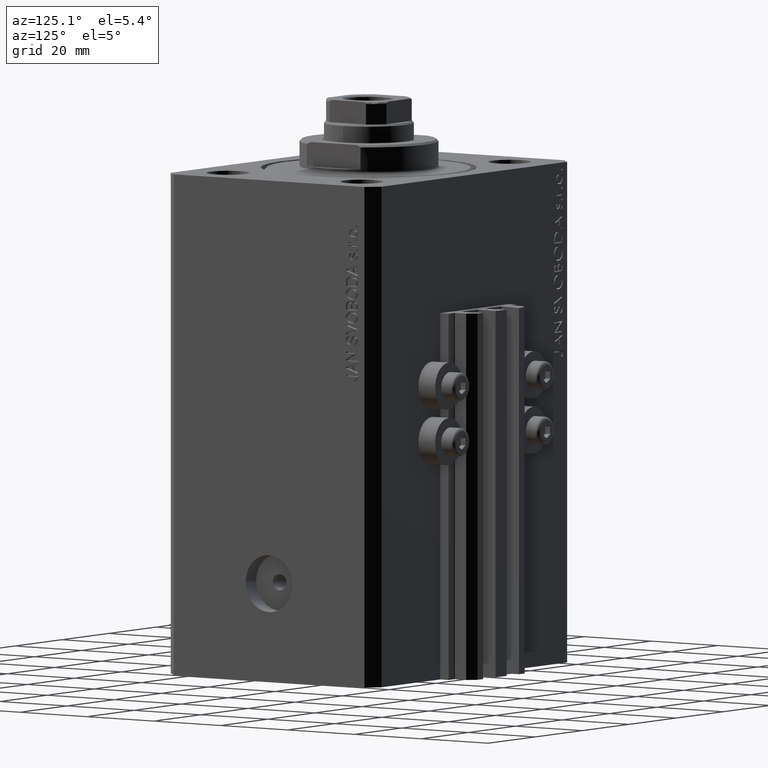
[diagram: clean part render]
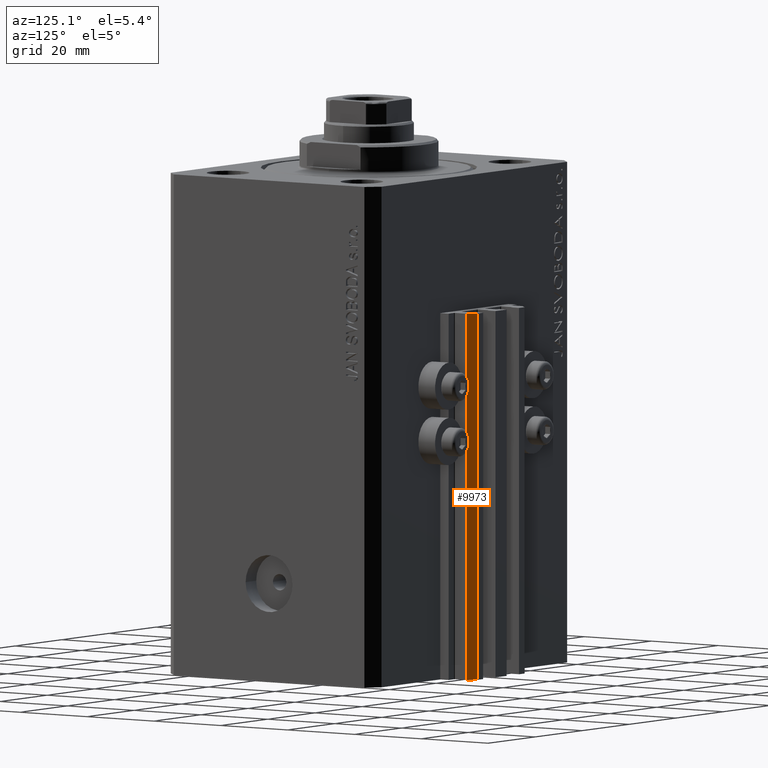
[diagram: same view with one face highlighted and labeled with its STEP entity id]
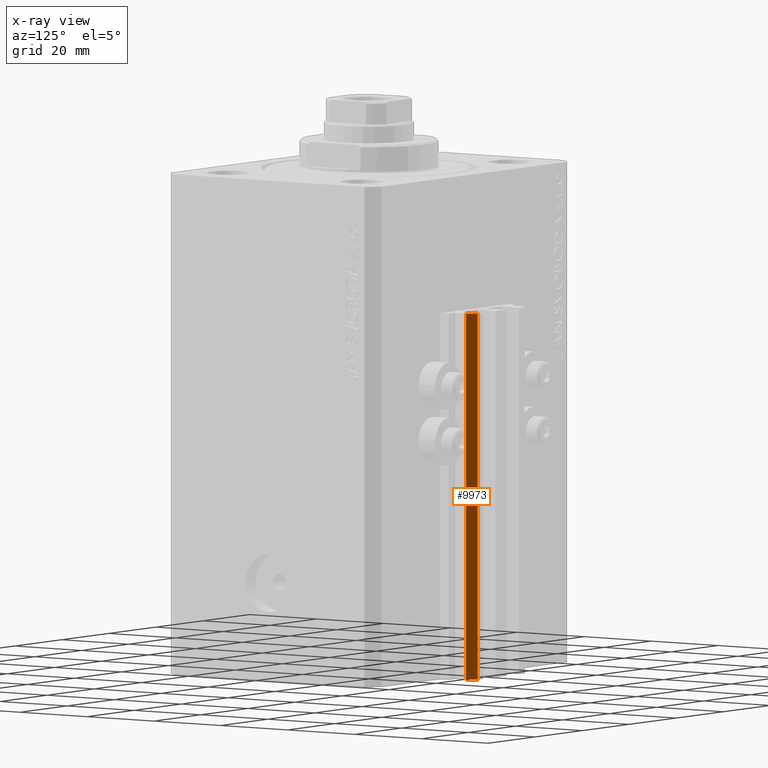
[diagram: x-ray of the same camera — body ghosted, the highlighted face saturated]
A machine part, auxiliary view. The second image highlights one B-rep face of the part: STEP entity #9973.
The next image is the same camera in x-ray: the body ghosted, the highlighted face saturated — about 0% of this face is hidden behind the body in this view.
In plain terms, the highlighted planar face has unit normal (0.7071, 0.7071, 0).
Its self-contained STEP definition (entity closure, byte-faithful):
#211 = EDGE_CURVE ( 'NONE', #39183, #26933, #20860, .T. ) ;
#1888 = FACE_OUTER_BOUND ( 'NONE', #15409, .T. ) ;
#3472 = CARTESIAN_POINT ( 'NONE',  ( 9.999999999999998224, 39.50000000000002132, -123.0000000000000000 ) ) ;
#3578 = CARTESIAN_POINT ( 'NONE',  ( 12.00000000000000000, 37.50000000000002132, -33.00000000000000000 ) ) ;
#3721 = EDGE_CURVE ( 'NONE', #16365, #39183, #27885, .T. ) ;
#6134 = DIRECTION ( 'NONE',  ( 0.000000000000000000, 0.000000000000000000, 1.000000000000000000 ) ) ;
#9560 = VERTEX_POINT ( 'NONE', #44805 ) ;
#9973 = ADVANCED_FACE ( 'NONE', ( #1888 ), #16465, .T. ) ;
#10476 = DIRECTION ( 'NONE',  ( -0.7071067811865474617, 0.7071067811865474617, 0.000000000000000000 ) ) ;
#11031 = LINE ( 'NONE', #18207, #21628 ) ;
#12880 = DIRECTION ( 'NONE',  ( 0.7071067811865475727, 0.7071067811865475727, -0.000000000000000000 ) ) ;
#12947 = ORIENTED_EDGE ( 'NONE', *, *, #16664, .T. ) ;
#15409 = EDGE_LOOP ( 'NONE', ( #31274, #42869, #12947, #34516 ) ) ;
#16365 = VERTEX_POINT ( 'NONE', #23789 ) ;
#16465 = PLANE ( 'NONE',  #34180 ) ;
#16664 = EDGE_CURVE ( 'NONE', #16365, #9560, #11031, .T. ) ;
#17575 = DIRECTION ( 'NONE',  ( 0.000000000000000000, 0.000000000000000000, 1.000000000000000000 ) ) ;
#18207 = CARTESIAN_POINT ( 'NONE',  ( 12.00000000000000000, 37.50000000000002132, -123.0000000000000000 ) ) ;
#20860 = LINE ( 'NONE', #31645, #42220 ) ;
#20927 = LINE ( 'NONE', #3472, #39470 ) ;
#21628 = VECTOR ( 'NONE', #32103, 1000.000000000000114 ) ;
#23789 = CARTESIAN_POINT ( 'NONE',  ( 12.00000000000000000, 37.50000000000002132, -123.0000000000000000 ) ) ;
#26933 = VERTEX_POINT ( 'NONE', #46031 ) ;
#27885 = LINE ( 'NONE', #38903, #31725 ) ;
#31274 = ORIENTED_EDGE ( 'NONE', *, *, #211, .F. ) ;
#31645 = CARTESIAN_POINT ( 'NONE',  ( 12.00000000000000000, 37.50000000000002132, -33.00000000000000000 ) ) ;
#31725 = VECTOR ( 'NONE', #6134, 1000.000000000000000 ) ;
#32103 = DIRECTION ( 'NONE',  ( -0.7071067811865474617, 0.7071067811865474617, 0.000000000000000000 ) ) ;
#34180 = AXIS2_PLACEMENT_3D ( 'NONE', #45687, #12880, #10476 ) ;
#34516 = ORIENTED_EDGE ( 'NONE', *, *, #40407, .T. ) ;
#38903 = CARTESIAN_POINT ( 'NONE',  ( 12.00000000000000000, 37.50000000000002132, -123.0000000000000000 ) ) ;
#39183 = VERTEX_POINT ( 'NONE', #3578 ) ;
#39470 = VECTOR ( 'NONE', #17575, 1000.000000000000000 ) ;
#40407 = EDGE_CURVE ( 'NONE', #9560, #26933, #20927, .T. ) ;
#42220 = VECTOR ( 'NONE', #42907, 1000.000000000000114 ) ;
#42869 = ORIENTED_EDGE ( 'NONE', *, *, #3721, .F. ) ;
#42907 = DIRECTION ( 'NONE',  ( -0.7071067811865474617, 0.7071067811865474617, 0.000000000000000000 ) ) ;
#44805 = CARTESIAN_POINT ( 'NONE',  ( 9.999999999999998224, 39.50000000000002132, -123.0000000000000000 ) ) ;
#45687 = CARTESIAN_POINT ( 'NONE',  ( 12.00000000000000000, 37.50000000000002132, -123.0000000000000000 ) ) ;
#46031 = CARTESIAN_POINT ( 'NONE',  ( 9.999999999999998224, 39.50000000000002132, -33.00000000000000000 ) ) ;